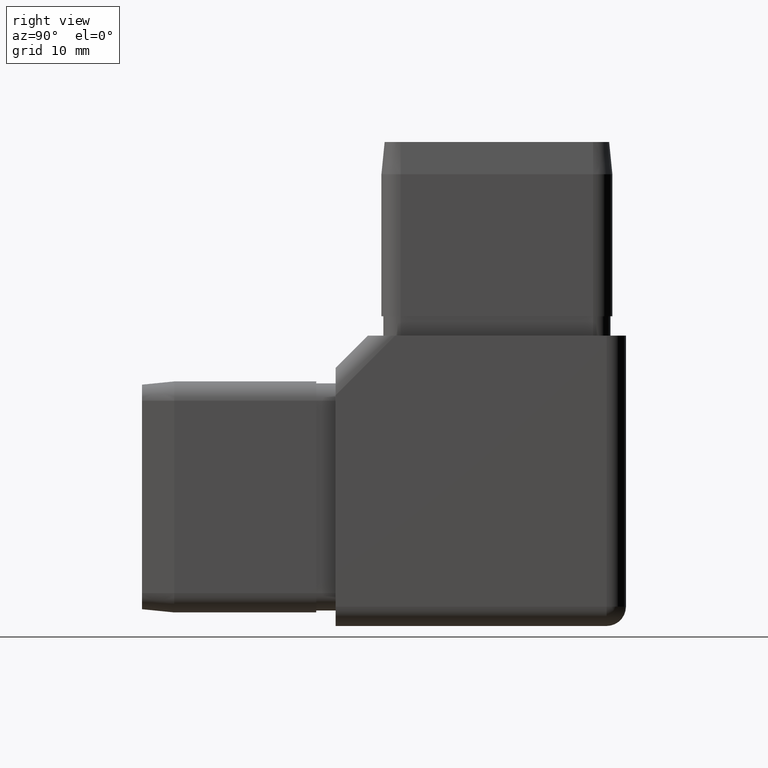
[diagram: clean part render]
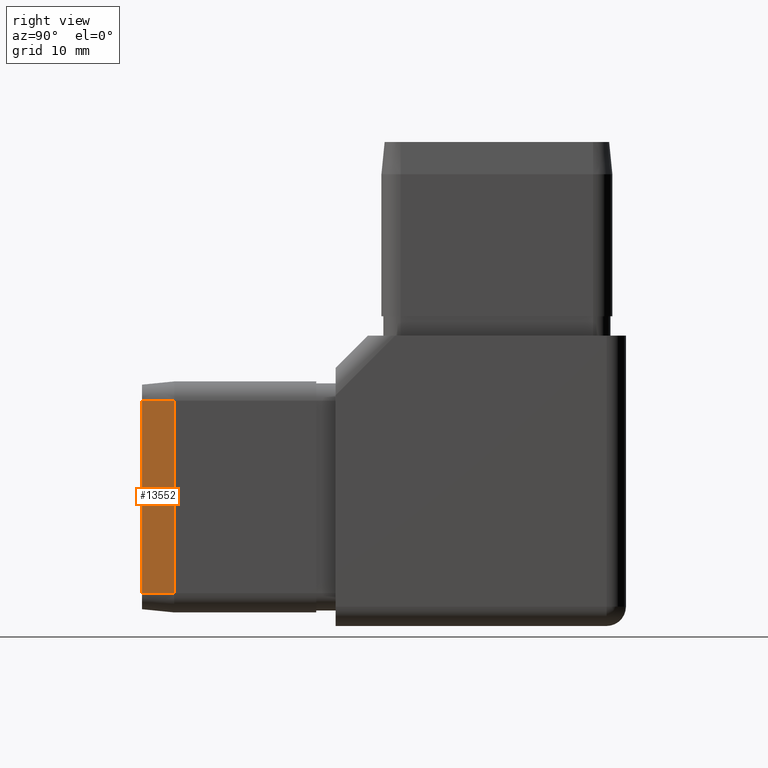
[diagram: same view with one face highlighted and labeled with its STEP entity id]
A machine part, right view. The second image highlights one B-rep face of the part: STEP entity #13552.
In plain terms, the highlighted planar face has unit normal (0.995, -0.0995, -0).
Its self-contained STEP definition (entity closure, byte-faithful):
#71 = CARTESIAN_POINT ( 'NONE',  ( 17.40000000000000600, -52.50000000000000000, 12.39999999999996300 ) ) ;
#420 = DIRECTION ( 'NONE',  ( 0.0000000000000000000, -2.328487887217191900E-016, 1.000000000000000000 ) ) ;
#863 = CARTESIAN_POINT ( 'NONE',  ( 17.90000000000000600, -47.49999999999999300, -17.40000000000002000 ) ) ;
#995 = VERTEX_POINT ( 'NONE', #6418 ) ;
#1328 = VECTOR ( 'NONE', #2507, 1000.000000000000200 ) ;
#1618 = AXIS2_PLACEMENT_3D ( 'NONE', #20791, #24639, #25000 ) ;
#2507 = DIRECTION ( 'NONE',  ( 0.09950371902099974800, 0.9950371902099890400, 4.357924340216641100E-016 ) ) ;
#2596 = EDGE_CURVE ( 'NONE', #23414, #995, #21261, .T. ) ;
#3117 = DIRECTION ( 'NONE',  ( 0.0000000000000000000, -2.328487887217191900E-016, 1.000000000000000000 ) ) ;
#4644 = CARTESIAN_POINT ( 'NONE',  ( 17.40000000000000600, -52.49999999999999300, -17.40000000000002300 ) ) ;
#5840 = DIRECTION ( 'NONE',  ( 0.09950371902099974800, 0.9950371902099890400, 4.357924340216641100E-016 ) ) ;
#6134 = PLANE ( 'NONE',  #1618 ) ;
#6418 = CARTESIAN_POINT ( 'NONE',  ( 17.90000000000000600, -47.49999999999999300, -17.40000000000002000 ) ) ;
#6847 = CARTESIAN_POINT ( 'NONE',  ( 17.40000000000000600, -52.50000000000000000, 12.39999999999996300 ) ) ;
#7396 = ORIENTED_EDGE ( 'NONE', *, *, #2596, .T. ) ;
#7829 = VERTEX_POINT ( 'NONE', #6847 ) ;
#10161 = EDGE_CURVE ( 'NONE', #23414, #7829, #25754, .T. ) ;
#11177 = VECTOR ( 'NONE', #5840, 1000.000000000000200 ) ;
#12996 = ORIENTED_EDGE ( 'NONE', *, *, #14007, .F. ) ;
#13345 = ORIENTED_EDGE ( 'NONE', *, *, #24709, .T. ) ;
#13552 = ADVANCED_FACE ( 'NONE', ( #18578 ), #6134, .T. ) ;
#14007 = EDGE_CURVE ( 'NONE', #7829, #26405, #18885, .T. ) ;
#15866 = LINE ( 'NONE', #863, #18772 ) ;
#17732 = VECTOR ( 'NONE', #420, 1000.000000000000000 ) ;
#18578 = FACE_OUTER_BOUND ( 'NONE', #24198, .T. ) ;
#18772 = VECTOR ( 'NONE', #3117, 1000.000000000000000 ) ;
#18885 = LINE ( 'NONE', #71, #11177 ) ;
#19740 = CARTESIAN_POINT ( 'NONE',  ( 17.90000000000000600, -47.50000000000000000, 12.39999999999996700 ) ) ;
#20791 = CARTESIAN_POINT ( 'NONE',  ( 17.40000000000000600, -52.49999999999999300, -17.40000000000002300 ) ) ;
#20880 = ORIENTED_EDGE ( 'NONE', *, *, #10161, .F. ) ;
#21121 = CARTESIAN_POINT ( 'NONE',  ( 17.40000000000000600, -52.49999999999999300, -17.40000000000002300 ) ) ;
#21261 = LINE ( 'NONE', #4644, #1328 ) ;
#23414 = VERTEX_POINT ( 'NONE', #25669 ) ;
#24198 = EDGE_LOOP ( 'NONE', ( #7396, #13345, #12996, #20880 ) ) ;
#24639 = DIRECTION ( 'NONE',  ( 0.9950371902099891500, -0.09950371902099976200, -2.316932044734608200E-017 ) ) ;
#24709 = EDGE_CURVE ( 'NONE', #995, #26405, #15866, .T. ) ;
#25000 = DIRECTION ( 'NONE',  ( 0.09950371902099974800, 0.9950371902099890400, 0.0000000000000000000 ) ) ;
#25669 = CARTESIAN_POINT ( 'NONE',  ( 17.40000000000000600, -52.49999999999999300, -17.40000000000002300 ) ) ;
#25754 = LINE ( 'NONE', #21121, #17732 ) ;
#26405 = VERTEX_POINT ( 'NONE', #19740 ) ;